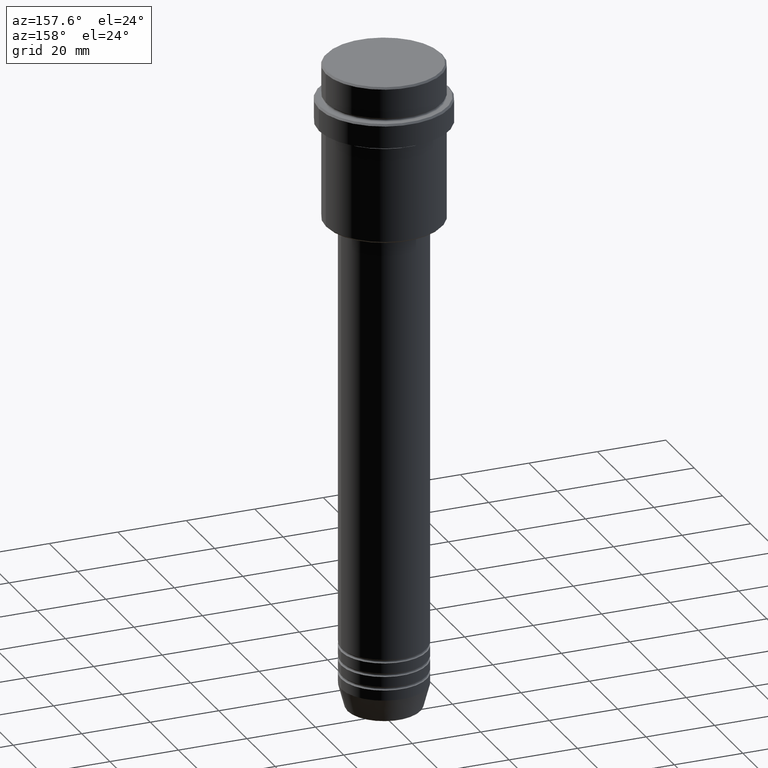
[diagram: clean part render]
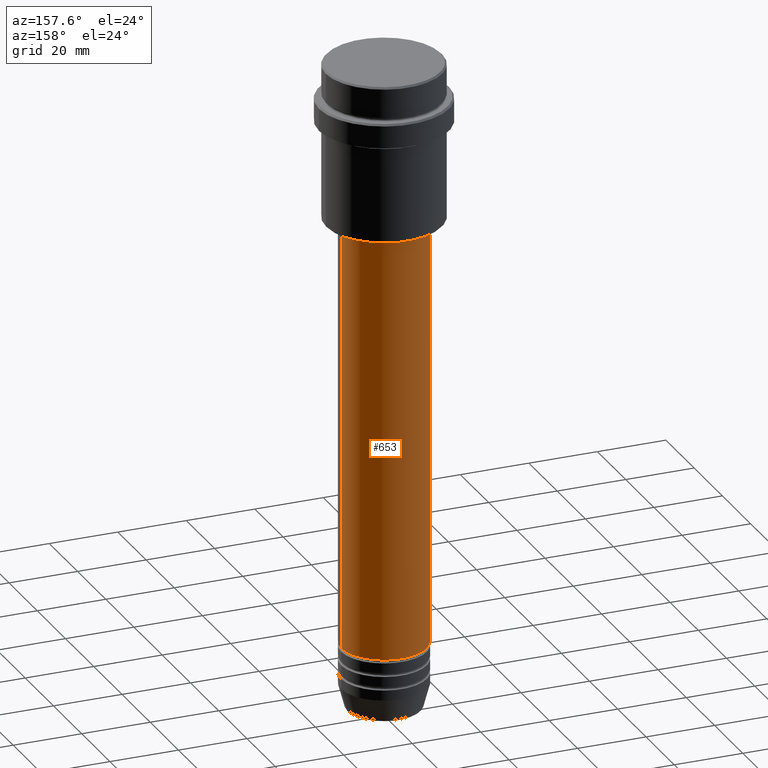
[diagram: same view with one face highlighted and labeled with its STEP entity id]
A machine part, auxiliary view. The second image highlights one B-rep face of the part: STEP entity #653.
In plain terms, the highlighted cylindrical surface (partial cylindrical patch) has radius 12.5 mm, axis along (-0, -0, 1).
Its self-contained STEP definition (entity closure, byte-faithful):
#2 = ORIENTED_EDGE ( 'NONE', *, *, #974, .F. ) ;
#60 = LINE ( 'NONE', #734, #1153 ) ;
#93 = DIRECTION ( 'NONE',  ( 1.000000000000000000, 0.000000000000000000, 0.000000000000000000 ) ) ;
#100 = VECTOR ( 'NONE', #305, 1000.000000000000000 ) ;
#118 = AXIS2_PLACEMENT_3D ( 'NONE', #928, #1044, #177 ) ;
#177 = DIRECTION ( 'NONE',  ( 1.000000000000000000, 0.000000000000000000, 0.000000000000000000 ) ) ;
#191 = DIRECTION ( 'NONE',  ( -0.000000000000000000, -0.000000000000000000, 1.000000000000000000 ) ) ;
#246 = CIRCLE ( 'NONE', #118, 12.50000000000000000 ) ;
#305 = DIRECTION ( 'NONE',  ( -0.000000000000000000, -0.000000000000000000, 1.000000000000000000 ) ) ;
#309 = CARTESIAN_POINT ( 'NONE',  ( 12.50000000000000000, 0.000000000000000000, -170.9999999999999147 ) ) ;
#392 = EDGE_CURVE ( 'NONE', #937, #624, #246, .T. ) ;
#441 = VERTEX_POINT ( 'NONE', #1051 ) ;
#508 = ORIENTED_EDGE ( 'NONE', *, *, #392, .F. ) ;
#512 = DIRECTION ( 'NONE',  ( -0.000000000000000000, -0.000000000000000000, 1.000000000000000000 ) ) ;
#584 = ORIENTED_EDGE ( 'NONE', *, *, #587, .T. ) ;
#587 = EDGE_CURVE ( 'NONE', #803, #441, #1335, .T. ) ;
#597 = EDGE_CURVE ( 'NONE', #441, #624, #1209, .T. ) ;
#624 = VERTEX_POINT ( 'NONE', #973 ) ;
#630 = DIRECTION ( 'NONE',  ( -0.000000000000000000, -0.000000000000000000, 1.000000000000000000 ) ) ;
#653 = ADVANCED_FACE ( 'NONE', ( #1063 ), #949, .T. ) ;
#723 = CARTESIAN_POINT ( 'NONE',  ( 12.50000000000000000, 0.000000000000000000, -47.00000000000000000 ) ) ;
#734 = CARTESIAN_POINT ( 'NONE',  ( 12.50000000000000000, 0.000000000000000000, 0.000000000000000000 ) ) ;
#739 = EDGE_LOOP ( 'NONE', ( #584, #954, #508, #2 ) ) ;
#797 = AXIS2_PLACEMENT_3D ( 'NONE', #1185, #191, #1410 ) ;
#803 = VERTEX_POINT ( 'NONE', #309 ) ;
#843 = CARTESIAN_POINT ( 'NONE',  ( 0.000000000000000000, 0.000000000000000000, -170.9999999999999147 ) ) ;
#928 = CARTESIAN_POINT ( 'NONE',  ( 0.000000000000000000, 0.000000000000000000, -47.00000000000000000 ) ) ;
#935 = AXIS2_PLACEMENT_3D ( 'NONE', #843, #630, #93 ) ;
#937 = VERTEX_POINT ( 'NONE', #723 ) ;
#949 = CYLINDRICAL_SURFACE ( 'NONE', #797, 12.50000000000000000 ) ;
#954 = ORIENTED_EDGE ( 'NONE', *, *, #597, .T. ) ;
#973 = CARTESIAN_POINT ( 'NONE',  ( -12.50000000000000000, 1.530808498934191521E-15, -47.00000000000000000 ) ) ;
#974 = EDGE_CURVE ( 'NONE', #803, #937, #60, .T. ) ;
#1044 = DIRECTION ( 'NONE',  ( -0.000000000000000000, -0.000000000000000000, 1.000000000000000000 ) ) ;
#1051 = CARTESIAN_POINT ( 'NONE',  ( -12.50000000000000000, 1.530808498934191521E-15, -170.9999999999999147 ) ) ;
#1063 = FACE_OUTER_BOUND ( 'NONE', #739, .T. ) ;
#1153 = VECTOR ( 'NONE', #512, 1000.000000000000000 ) ;
#1185 = CARTESIAN_POINT ( 'NONE',  ( 0.000000000000000000, 0.000000000000000000, 0.000000000000000000 ) ) ;
#1209 = LINE ( 'NONE', #1404, #100 ) ;
#1335 = CIRCLE ( 'NONE', #935, 12.50000000000000000 ) ;
#1404 = CARTESIAN_POINT ( 'NONE',  ( -12.50000000000000000, 1.530808498934191521E-15, 0.000000000000000000 ) ) ;
#1410 = DIRECTION ( 'NONE',  ( 1.000000000000000000, 0.000000000000000000, 0.000000000000000000 ) ) ;